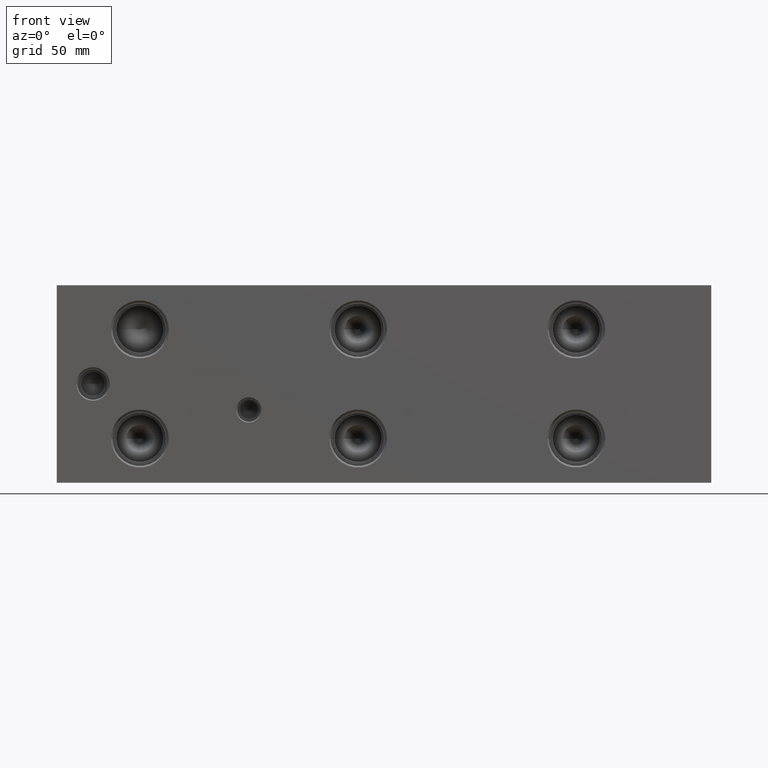
[diagram: clean part render]
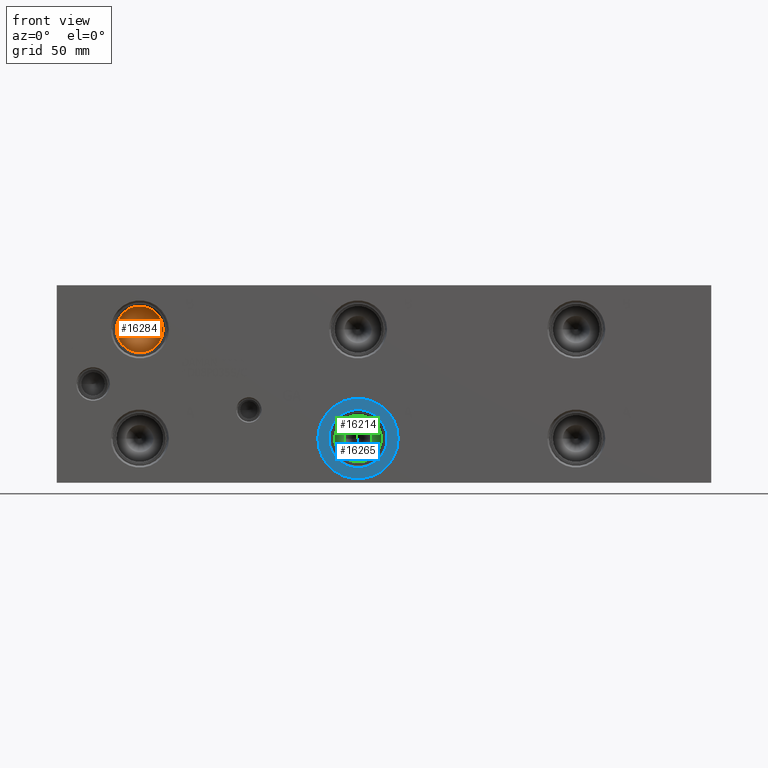
[diagram: same view with three faces highlighted in distinct colors, each labeled with its STEP entity id]
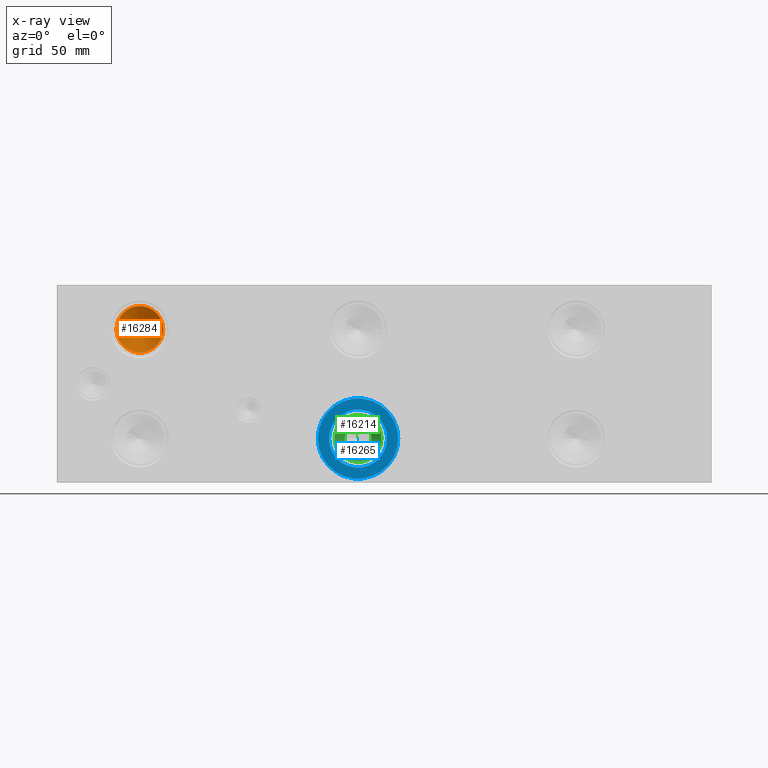
[diagram: x-ray of the same camera — body ghosted, the three highlighted faces saturated]
A machine part, front view with three faces highlighted in distinct colors.
The next image is the same camera in x-ray (body ghosted, the three faces saturated) — at least one of them is partly hidden behind the body in this view.
Their STEP definitions:

[orange] entity #16284 — the highlighted conical surface has half-angle 60 deg.
#71=CONICAL_SURFACE('',#17200,7.14375,1.0471975511966);
#502=CIRCLE('',#17201,14.2875);
#503=CIRCLE('',#17202,14.2875);
#2239=FACE_OUTER_BOUND('',#3195,.T.);
#3195=EDGE_LOOP('',(#13813,#13814,#13815,#13816));
#4665=LINE('',#27859,#6043);
#6043=VECTOR('',#20371,7.14375);
#7451=VERTEX_POINT('',#27855);
#7452=VERTEX_POINT('',#27856);
#7453=VERTEX_POINT('',#27858);
#9656=EDGE_CURVE('',#7451,#7452,#502,.T.);
#9657=EDGE_CURVE('',#7452,#7453,#4665,.T.);
#9658=EDGE_CURVE('',#7452,#7451,#503,.T.);
#13813=ORIENTED_EDGE('',*,*,#9656,.T.);
#13814=ORIENTED_EDGE('',*,*,#9657,.T.);
#13815=ORIENTED_EDGE('',*,*,#9657,.F.);
#13816=ORIENTED_EDGE('',*,*,#9658,.T.);
#16284=ADVANCED_FACE('',(#2239),#71,.F.);
#17200=AXIS2_PLACEMENT_3D('',#27854,#20367,#20368);
#17201=AXIS2_PLACEMENT_3D('',#27857,#20369,#20370);
#17202=AXIS2_PLACEMENT_3D('',#27860,#20372,#20373);
#20367=DIRECTION('center_axis',(0.,-1.,0.));
#20368=DIRECTION('ref_axis',(1.,0.,0.));
#20369=DIRECTION('center_axis',(0.,-1.,0.));
#20370=DIRECTION('ref_axis',(1.,0.,0.));
#20371=DIRECTION('',(0.866025403784438,0.5,1.06057523872491E-16));
#20372=DIRECTION('center_axis',(0.,-1.,0.));
#20373=DIRECTION('ref_axis',(1.,0.,0.));
#27854=CARTESIAN_POINT('Origin',(50.8,36.7725059855234,93.6752));
#27855=CARTESIAN_POINT('',(65.0875,32.64806,93.6752));
#27856=CARTESIAN_POINT('',(36.5125,32.64806,93.6752));
#27857=CARTESIAN_POINT('Origin',(50.8,32.64806,93.6752));
#27858=CARTESIAN_POINT('',(50.8,40.8969519710468,93.6752));
#27859=CARTESIAN_POINT('',(43.65625,36.7725059855234,93.6752));
#27860=CARTESIAN_POINT('Origin',(50.8,32.64806,93.6752));

[blue] entity #16265 — the highlighted planar face has unit normal (0, -1, 0).
#487=CIRCLE('',#17167,24.5618);
#488=CIRCLE('',#17168,24.5618);
#489=CIRCLE('',#17169,17.7546);
#852=FACE_BOUND('',#3172,.T.);
#2220=FACE_OUTER_BOUND('',#3171,.T.);
#3171=EDGE_LOOP('',(#13731,#13732));
#3172=EDGE_LOOP('',(#13733));
#7432=VERTEX_POINT('',#27788);
#7433=VERTEX_POINT('',#27789);
#7434=VERTEX_POINT('',#27792);
#9627=EDGE_CURVE('',#7432,#7433,#487,.T.);
#9628=EDGE_CURVE('',#7433,#7432,#488,.T.);
#9629=EDGE_CURVE('',#7434,#7434,#489,.T.);
#13731=ORIENTED_EDGE('',*,*,#9627,.T.);
#13732=ORIENTED_EDGE('',*,*,#9628,.T.);
#13733=ORIENTED_EDGE('',*,*,#9629,.F.);
#14997=PLANE('',#17166);
#16265=ADVANCED_FACE('',(#2220,#852),#14997,.T.);
#17166=AXIS2_PLACEMENT_3D('',#27787,#20285,#20286);
#17167=AXIS2_PLACEMENT_3D('',#27790,#20287,#20288);
#17168=AXIS2_PLACEMENT_3D('',#27791,#20289,#20290);
#17169=AXIS2_PLACEMENT_3D('',#27793,#20291,#20292);
#20285=DIRECTION('center_axis',(0.,-1.,0.));
#20286=DIRECTION('ref_axis',(1.,0.,0.));
#20287=DIRECTION('center_axis',(0.,-1.,0.));
#20288=DIRECTION('ref_axis',(1.,0.,0.));
#20289=DIRECTION('center_axis',(0.,-1.,0.));
#20290=DIRECTION('ref_axis',(1.,0.,0.));
#20291=DIRECTION('center_axis',(0.,-1.,0.));
#20292=DIRECTION('ref_axis',(1.,0.,0.));
#27787=CARTESIAN_POINT('Origin',(184.15,0.7874,26.9748));
#27788=CARTESIAN_POINT('',(208.7118,0.7874,26.9748));
#27789=CARTESIAN_POINT('',(159.5882,0.7874,26.9748));
#27790=CARTESIAN_POINT('Origin',(184.15,0.7874,26.9748));
#27791=CARTESIAN_POINT('Origin',(184.15,0.7874,26.9748));
#27792=CARTESIAN_POINT('',(166.3954,0.7874,26.9748));
#27793=CARTESIAN_POINT('Origin',(184.15,0.7874,26.9748));

[green] entity #16214 — the highlighted conical surface has half-angle 60 deg.
#41=CONICAL_SURFACE('',#17035,7.14375,1.0471975511966);
#407=CIRCLE('',#17036,14.2875);
#408=CIRCLE('',#17037,8.29239320143379);
#409=CIRCLE('',#17038,14.2875);
#2169=FACE_OUTER_BOUND('',#3115,.T.);
#3115=EDGE_LOOP('',(#13493,#13494,#13495,#13496,#13497));
#4605=LINE('',#27534,#5983);
#5983=VECTOR('',#19981,7.14375);
#7351=VERTEX_POINT('',#27530);
#7352=VERTEX_POINT('',#27531);
#7353=VERTEX_POINT('',#27533);
#9501=EDGE_CURVE('',#7351,#7352,#407,.T.);
#9502=EDGE_CURVE('',#7352,#7353,#4605,.T.);
#9503=EDGE_CURVE('',#7353,#7353,#408,.T.);
#9504=EDGE_CURVE('',#7352,#7351,#409,.T.);
#13493=ORIENTED_EDGE('',*,*,#9501,.T.);
#13494=ORIENTED_EDGE('',*,*,#9502,.T.);
#13495=ORIENTED_EDGE('',*,*,#9503,.F.);
#13496=ORIENTED_EDGE('',*,*,#9502,.F.);
#13497=ORIENTED_EDGE('',*,*,#9504,.T.);
#16214=ADVANCED_FACE('',(#2169),#41,.F.);
#17035=AXIS2_PLACEMENT_3D('',#27529,#19977,#19978);
#17036=AXIS2_PLACEMENT_3D('',#27532,#19979,#19980);
#17037=AXIS2_PLACEMENT_3D('',#27535,#19982,#19983);
#17038=AXIS2_PLACEMENT_3D('',#27536,#19984,#19985);
#19977=DIRECTION('center_axis',(0.,-1.,0.));
#19978=DIRECTION('ref_axis',(1.,0.,0.));
#19979=DIRECTION('center_axis',(0.,-1.,0.));
#19980=DIRECTION('ref_axis',(1.,0.,0.));
#19981=DIRECTION('',(0.866025403784438,0.5,1.06057523872491E-16));
#19982=DIRECTION('center_axis',(0.,-1.,0.));
#19983=DIRECTION('ref_axis',(1.,0.,0.));
#19984=DIRECTION('center_axis',(0.,-1.,0.));
#19985=DIRECTION('ref_axis',(1.,0.,0.));
#27529=CARTESIAN_POINT('Origin',(184.15,36.7715359855234,26.9748));
#27530=CARTESIAN_POINT('',(198.4375,32.64709,26.9748));
#27531=CARTESIAN_POINT('',(169.8625,32.64709,26.9748));
#27532=CARTESIAN_POINT('Origin',(184.15,32.64709,26.9748));
#27533=CARTESIAN_POINT('',(175.857606798566,36.1083665239728,26.9748));
#27534=CARTESIAN_POINT('',(177.00625,36.7715359855234,26.9748));
#27535=CARTESIAN_POINT('Origin',(184.15,36.1083665239728,26.9748));
#27536=CARTESIAN_POINT('Origin',(184.15,32.64709,26.9748));